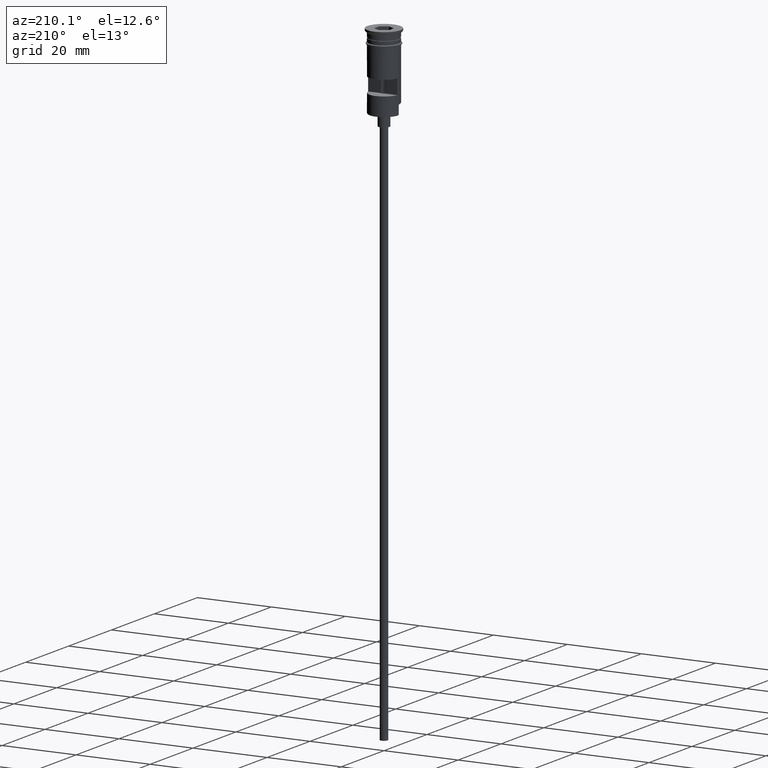
[diagram: clean part render]
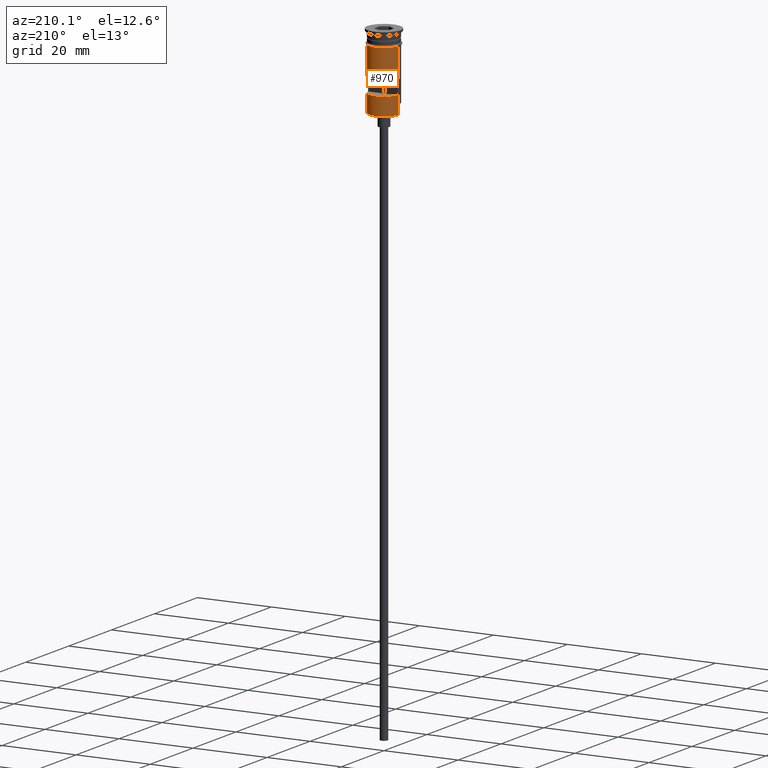
[diagram: same view with one face highlighted and labeled with its STEP entity id]
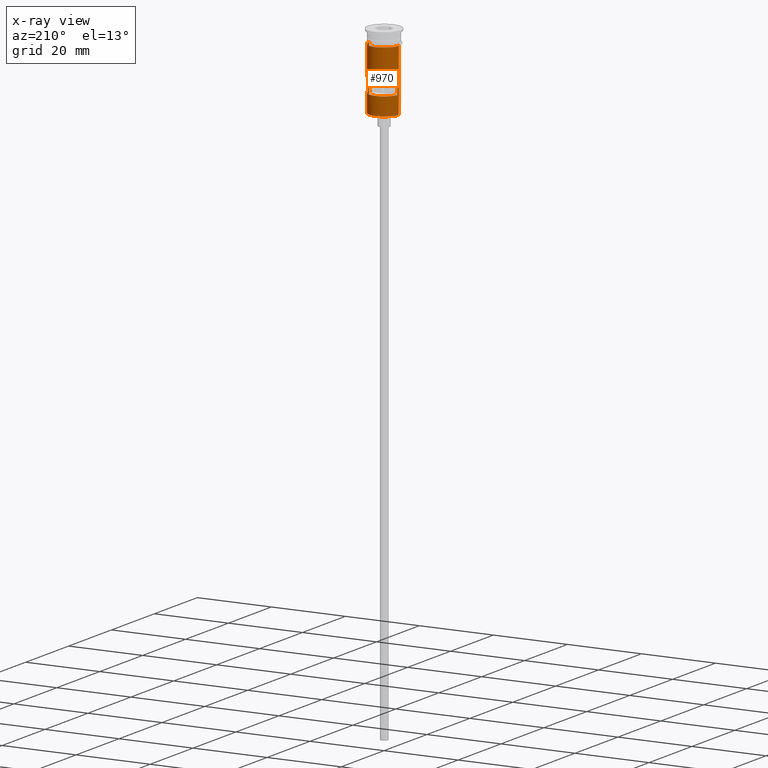
[diagram: x-ray of the same camera — body ghosted, the highlighted face saturated]
A machine part, auxiliary view. The second image highlights one B-rep face of the part: STEP entity #970.
The next image is the same camera in x-ray: the body ghosted, the highlighted face saturated — about 0% of this face is hidden behind the body in this view.
In plain terms, the highlighted cylindrical surface (edge-blend (fillet) strip) has radius 4 mm, axis along (-0, -0, 1).
Its self-contained STEP definition (entity closure, byte-faithful):
#19 = ORIENTED_EDGE ( 'NONE', *, *, #725, .T. ) ;
#22 = ORIENTED_EDGE ( 'NONE', *, *, #1122, .F. ) ;
#43 = DIRECTION ( 'NONE',  ( -0.000000000000000000, -0.000000000000000000, 1.000000000000000000 ) ) ;
#51 = DIRECTION ( 'NONE',  ( 0.000000000000000000, 0.000000000000000000, 1.000000000000000000 ) ) ;
#59 = AXIS2_PLACEMENT_3D ( 'NONE', #1402, #302, #432 ) ;
#71 = ORIENTED_EDGE ( 'NONE', *, *, #476, .F. ) ;
#80 = LINE ( 'NONE', #945, #462 ) ;
#122 = DIRECTION ( 'NONE',  ( 1.000000000000000000, 0.000000000000000000, 0.000000000000000000 ) ) ;
#124 = DIRECTION ( 'NONE',  ( -0.000000000000000000, -0.000000000000000000, 1.000000000000000000 ) ) ;
#162 = VERTEX_POINT ( 'NONE', #1162 ) ;
#175 = DIRECTION ( 'NONE',  ( -1.000000000000000000, 0.000000000000000000, 0.000000000000000000 ) ) ;
#188 = VECTOR ( 'NONE', #1477, 1000.000000000000000 ) ;
#228 = EDGE_LOOP ( 'NONE', ( #904, #22, #71, #1345 ) ) ;
#266 = FACE_BOUND ( 'NONE', #228, .T. ) ;
#281 = ORIENTED_EDGE ( 'NONE', *, *, #456, .T. ) ;
#302 = DIRECTION ( 'NONE',  ( -0.000000000000000000, 0.000000000000000000, -1.000000000000000000 ) ) ;
#318 = CARTESIAN_POINT ( 'NONE',  ( 3.999999999999997335, 4.898587196589409870E-16, -20.29999999999997584 ) ) ;
#367 = CARTESIAN_POINT ( 'NONE',  ( 3.954743986657038413, 0.5999999999999996447, -11.50000000000000000 ) ) ;
#382 = VECTOR ( 'NONE', #1043, 1000.000000000000000 ) ;
#385 = VERTEX_POINT ( 'NONE', #412 ) ;
#400 = DIRECTION ( 'NONE',  ( 0.000000000000000000, 0.000000000000000000, -1.000000000000000000 ) ) ;
#412 = CARTESIAN_POINT ( 'NONE',  ( -3.954743986657037524, 0.5999999999999996447, -15.50000000000000000 ) ) ;
#424 = DIRECTION ( 'NONE',  ( 0.000000000000000000, 0.000000000000000000, 1.000000000000000000 ) ) ;
#432 = DIRECTION ( 'NONE',  ( 1.000000000000000000, 0.000000000000000000, 0.000000000000000000 ) ) ;
#456 = EDGE_CURVE ( 'NONE', #930, #162, #766, .T. ) ;
#462 = VECTOR ( 'NONE', #43, 1000.000000000000000 ) ;
#465 = VERTEX_POINT ( 'NONE', #1478 ) ;
#476 = EDGE_CURVE ( 'NONE', #385, #1131, #774, .T. ) ;
#509 = VECTOR ( 'NONE', #400, 1000.000000000000000 ) ;
#512 = AXIS2_PLACEMENT_3D ( 'NONE', #1146, #1118, #122 ) ;
#513 = EDGE_CURVE ( 'NONE', #542, #1401, #1009, .T. ) ;
#542 = VERTEX_POINT ( 'NONE', #367 ) ;
#549 = CARTESIAN_POINT ( 'NONE',  ( 3.999999999999997335, 4.898587196589409870E-16, -20.49999999999999645 ) ) ;
#578 = VECTOR ( 'NONE', #124, 1000.000000000000000 ) ;
#605 = EDGE_LOOP ( 'NONE', ( #281, #1019, #1145, #996, #763, #19 ) ) ;
#613 = CARTESIAN_POINT ( 'NONE',  ( 3.954743986657038413, 0.5999999999999996447, -15.50000000000000000 ) ) ;
#666 = VERTEX_POINT ( 'NONE', #1316 ) ;
#697 = VERTEX_POINT ( 'NONE', #318 ) ;
#716 = VERTEX_POINT ( 'NONE', #819 ) ;
#725 = EDGE_CURVE ( 'NONE', #697, #930, #966, .T. ) ;
#753 = FACE_OUTER_BOUND ( 'NONE', #605, .T. ) ;
#763 = ORIENTED_EDGE ( 'NONE', *, *, #1218, .F. ) ;
#765 = EDGE_CURVE ( 'NONE', #162, #465, #80, .T. ) ;
#766 = LINE ( 'NONE', #1024, #578 ) ;
#774 = LINE ( 'NONE', #1513, #188 ) ;
#819 = CARTESIAN_POINT ( 'NONE',  ( 4.000000000000000000, 4.898587196589412829E-16, -17.79999999999998295 ) ) ;
#833 = CARTESIAN_POINT ( 'NONE',  ( 4.000000000000000000, 0.000000000000000000, 0.000000000000000000 ) ) ;
#901 = CARTESIAN_POINT ( 'NONE',  ( 3.954743986657037524, 0.5999999999999996447, 0.000000000000000000 ) ) ;
#904 = ORIENTED_EDGE ( 'NONE', *, *, #513, .F. ) ;
#913 = AXIS2_PLACEMENT_3D ( 'NONE', #1295, #51, #175 ) ;
#919 = DIRECTION ( 'NONE',  ( -0.000000000000000000, -0.000000000000000000, 1.000000000000000000 ) ) ;
#930 = VERTEX_POINT ( 'NONE', #1229 ) ;
#945 = CARTESIAN_POINT ( 'NONE',  ( -4.000000000000000000, 4.898587196589412829E-16, 0.000000000000000000 ) ) ;
#966 = CIRCLE ( 'NONE', #1035, 4.000000000000000000 ) ;
#967 = CIRCLE ( 'NONE', #913, 4.000000000000000000 ) ;
#970 = ADVANCED_FACE ( 'NONE', ( #266, #753 ), #1135, .T. ) ;
#996 = ORIENTED_EDGE ( 'NONE', *, *, #1255, .F. ) ;
#1009 = LINE ( 'NONE', #901, #509 ) ;
#1019 = ORIENTED_EDGE ( 'NONE', *, *, #765, .T. ) ;
#1020 = CARTESIAN_POINT ( 'NONE',  ( -3.954743986657037524, 0.5999999999999996447, -11.50000000000000000 ) ) ;
#1024 = CARTESIAN_POINT ( 'NONE',  ( -3.999999999999997335, 0.000000000000000000, -20.49999999999999645 ) ) ;
#1035 = AXIS2_PLACEMENT_3D ( 'NONE', #1291, #424, #1310 ) ;
#1043 = DIRECTION ( 'NONE',  ( -0.000000000000000000, -0.000000000000000000, 1.000000000000000000 ) ) ;
#1118 = DIRECTION ( 'NONE',  ( -0.000000000000000000, -0.000000000000000000, 1.000000000000000000 ) ) ;
#1122 = EDGE_CURVE ( 'NONE', #1131, #542, #1597, .T. ) ;
#1131 = VERTEX_POINT ( 'NONE', #1020 ) ;
#1135 = CYLINDRICAL_SURFACE ( 'NONE', #512, 4.000000000000000000 ) ;
#1140 = EDGE_CURVE ( 'NONE', #666, #465, #1578, .T. ) ;
#1145 = ORIENTED_EDGE ( 'NONE', *, *, #1140, .F. ) ;
#1146 = CARTESIAN_POINT ( 'NONE',  ( 0.000000000000000000, 0.000000000000000000, 0.000000000000000000 ) ) ;
#1154 = EDGE_CURVE ( 'NONE', #1401, #385, #967, .T. ) ;
#1162 = CARTESIAN_POINT ( 'NONE',  ( -3.999999999999997335, 0.000000000000000000, -17.79999999999998295 ) ) ;
#1218 = EDGE_CURVE ( 'NONE', #697, #716, #1407, .T. ) ;
#1225 = AXIS2_PLACEMENT_3D ( 'NONE', #1283, #919, #1289 ) ;
#1229 = CARTESIAN_POINT ( 'NONE',  ( -3.999999999999997335, 0.000000000000000000, -20.29999999999997584 ) ) ;
#1250 = VECTOR ( 'NONE', #1459, 1000.000000000000000 ) ;
#1255 = EDGE_CURVE ( 'NONE', #716, #666, #1347, .T. ) ;
#1283 = CARTESIAN_POINT ( 'NONE',  ( 0.000000000000000000, 0.000000000000000000, -3.799999999999998490 ) ) ;
#1289 = DIRECTION ( 'NONE',  ( 1.000000000000000000, 0.000000000000000000, 0.000000000000000000 ) ) ;
#1291 = CARTESIAN_POINT ( 'NONE',  ( 0.000000000000000000, 0.000000000000000000, -20.29999999999997584 ) ) ;
#1295 = CARTESIAN_POINT ( 'NONE',  ( 0.000000000000000000, 0.000000000000000000, -15.50000000000000000 ) ) ;
#1310 = DIRECTION ( 'NONE',  ( -1.000000000000000000, 0.000000000000000000, 0.000000000000000000 ) ) ;
#1316 = CARTESIAN_POINT ( 'NONE',  ( 4.000000000000000000, 0.000000000000000000, -3.799999999999998490 ) ) ;
#1345 = ORIENTED_EDGE ( 'NONE', *, *, #1154, .F. ) ;
#1347 = LINE ( 'NONE', #833, #1250 ) ;
#1401 = VERTEX_POINT ( 'NONE', #613 ) ;
#1402 = CARTESIAN_POINT ( 'NONE',  ( 0.000000000000000000, 0.000000000000000000, -11.50000000000000000 ) ) ;
#1407 = LINE ( 'NONE', #549, #382 ) ;
#1459 = DIRECTION ( 'NONE',  ( -0.000000000000000000, -0.000000000000000000, 1.000000000000000000 ) ) ;
#1477 = DIRECTION ( 'NONE',  ( -0.000000000000000000, -0.000000000000000000, 1.000000000000000000 ) ) ;
#1478 = CARTESIAN_POINT ( 'NONE',  ( -4.000000000000000000, 4.898587196589412829E-16, -3.799999999999998490 ) ) ;
#1513 = CARTESIAN_POINT ( 'NONE',  ( -3.954743986657037524, 0.5999999999999996447, 0.000000000000000000 ) ) ;
#1578 = CIRCLE ( 'NONE', #1225, 4.000000000000000000 ) ;
#1597 = CIRCLE ( 'NONE', #59, 4.000000000000000000 ) ;